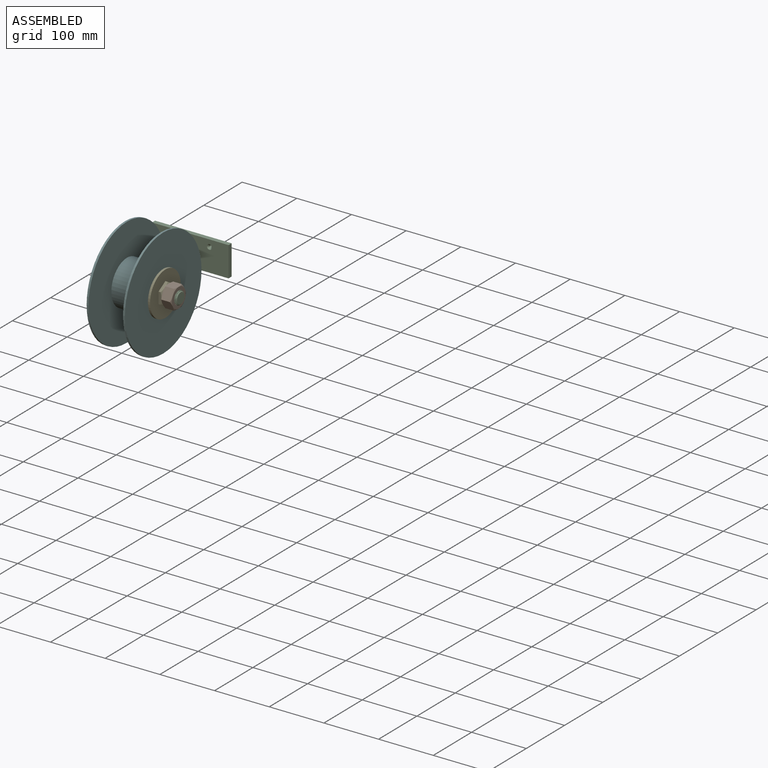
[diagram: assembled view]
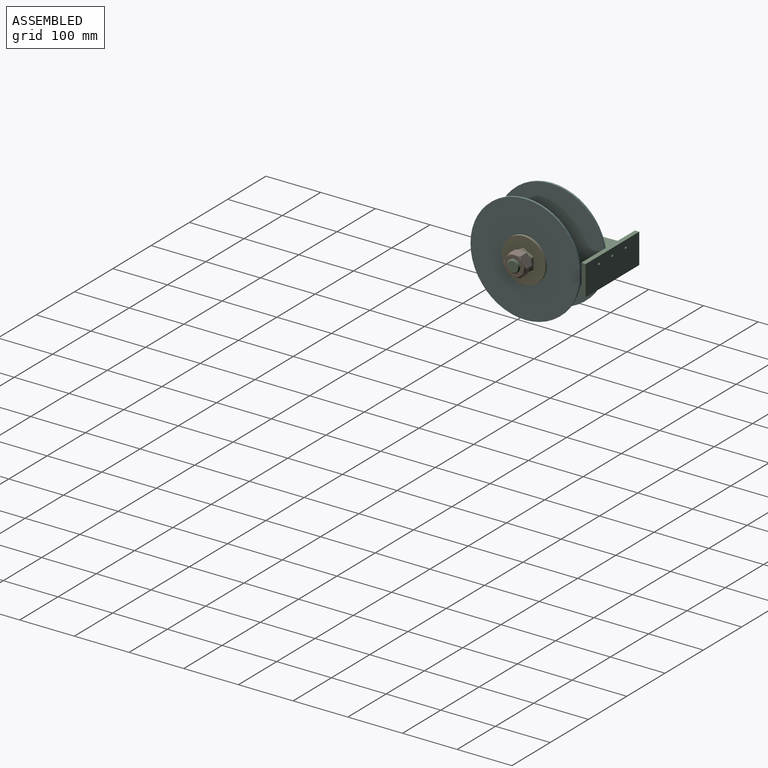
[diagram: assembled view, second angle]
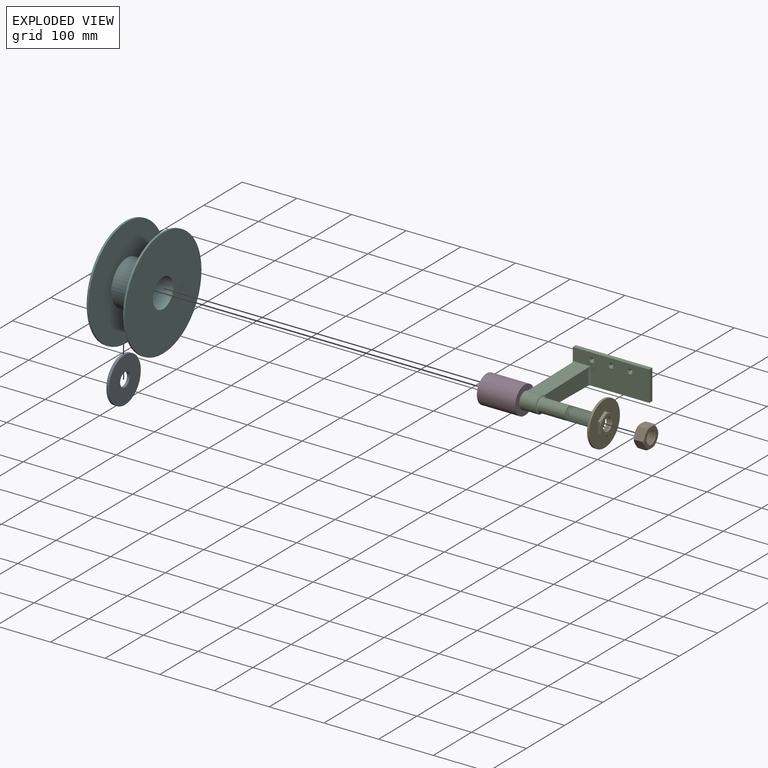
[diagram: exploded view]
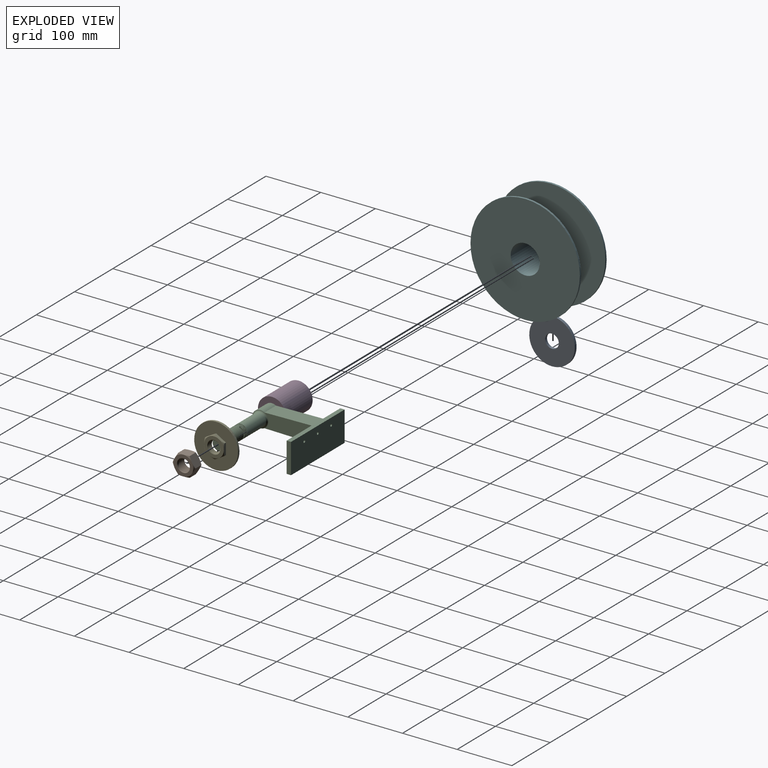
[diagram: exploded view, second angle]
ASSEMBLY  parts=6 mates=5
PART A: 4 faces, bbox 5x83x83 mm
  f0: cylinder r=12.5mm len=25mm, axis (-1,0,0), area 392.7mm2, adj f2,f3
  f1: cylinder r=41.5mm len=83mm, axis (-1,0,0), area 1303.8mm2, adj f2,f3
  f2: plane 83x83mm, normal (1,0,0), area 4919.7mm2, adj f0,f1
  f3: plane 83x83mm, normal (-1,0,0), area 4919.7mm2, adj f0,f1
PART B: 27 faces, bbox 43.3x22.6x43.3 mm
  f0: plane 20.72x19.71mm, normal (-0.5,0,0.87), area 372mm2, adj f1,f5,f18,f19,f22,f23
  f1: plane 22.51x20.72mm, normal (-1,0,0), area 372mm2, adj f0,f2,f17,f18,f23,f24
  f2: plane 20.72x19.71mm, normal (-0.5,0,-0.87), area 372mm2, adj f1,f3,f16,f17,f24,f25
  f3: plane 20.72x19.71mm, normal (0.5,0,-0.87), area 372mm2, adj f2,f4,f15,f16,f25,f26
  f4: plane 22.51x20.72mm, normal (1,0,0), area 372mm2, adj f3,f5,f15,f20,f21,f26
  f5: plane 20.72x19.71mm, normal (0.5,0,0.87), area 372mm2, adj f0,f4,f19,f20,f21,f22
  f6: plane 36x36mm, normal (0,-1,0), area 565.5mm2, adj f7,f14,f15,f16,f17,f18,f19,f20
  f7: cone r=12mm half-angle=45deg, axis (0,-1,0), area 93.2mm2, adj f6,f10,f11,f12,f13
  f8: plane 36x36mm, normal (0,1,0), area 565.5mm2, adj f9,f14,f21,f22,f23,f24,f25,f26
  f9: cone r=12mm half-angle=45deg, axis (0,1,0), area 97.5mm2, adj f8,f11,f12,f13
  f10: plane 0.63x0.4mm, normal (-1,0,0), area 0.1mm2, adj f7,f11,f14
  f11: bspline ~25.24x24mm, area 885.8mm2, adj f7,f9,f10,f12,f14
  f12: cylinder r=10.05mm len=20.1mm, axis (0,-1,0), area 119.2mm2, adj f7,f9,f11,f13
  f13: bspline ~25.24x24mm, area 888.5mm2, adj f7,f9,f12,f14
  f14: cylinder r=12mm len=24mm, axis (0,1,0), area 163.6mm2, adj f6,f8,f10,f11,f13
  f15: cone r=18mm half-angle=60deg, axis (0,1,0), area 31.9mm2, adj f3,f4,f6
  f16: cone r=18mm half-angle=60deg, axis (0,1,0), area 31.9mm2, adj f2,f3,f6
  f17: cone r=18mm half-angle=60deg, axis (0,1,0), area 31.9mm2, adj f1,f2,f6
  f18: cone r=18mm half-angle=60deg, axis (0,1,0), area 31.9mm2, adj f0,f1,f6
  f19: cone r=18mm half-angle=60deg, axis (0,1,0), area 31.9mm2, adj f0,f5,f6
  f20: cone r=18mm half-angle=60deg, axis (0,1,0), area 31.9mm2, adj f4,f5,f6
  f21: cone r=18mm half-angle=60deg, axis (0,-1,0), area 31.9mm2, adj f4,f5,f8
  f22: cone r=18mm half-angle=60deg, axis (0,-1,0), area 31.9mm2, adj f0,f5,f8
  f23: cone r=18mm half-angle=60deg, axis (0,-1,0), area 31.9mm2, adj f0,f1,f8
  f24: cone r=18mm half-angle=60deg, axis (0,-1,0), area 31.9mm2, adj f1,f2,f8
  f25: cone r=18mm half-angle=60deg, axis (0,-1,0), area 31.9mm2, adj f2,f3,f8
  f26: cone r=18mm half-angle=60deg, axis (0,-1,0), area 31.9mm2, adj f3,f4,f8
PART C: 45 faces, bbox 142.1x152.7x59.7 mm
  f0: cylinder r=12mm len=48.68mm, axis (1,0,0), area 3643.5mm2, adj f1,f24,f25,f44
  f1: cylinder r=12mm len=24mm, axis (1,0,0), area 28.3mm2, adj f0,f2,f22,f24
  f2: cylinder r=12mm len=24mm, axis (1,0,0), area 28.3mm2, adj f1,f3,f22,f24
  f3: cylinder r=12mm len=24mm, axis (1,0,0), area 28.3mm2, adj f2,f4,f22,f24
  f4: cylinder r=12mm len=24mm, axis (1,0,0), area 28.3mm2, adj f3,f5,f22,f24
  f5: cylinder r=12mm len=24mm, axis (1,0,0), area 28.3mm2, adj f4,f6,f22,f24
  f6: cylinder r=12mm len=24mm, axis (1,0,0), area 28.3mm2, adj f5,f7,f22,f24
  f7: cylinder r=12mm len=24mm, axis (1,0,0), area 28.3mm2, adj f6,f8,f22,f24
  f8: cylinder r=12mm len=24mm, axis (1,0,0), area 28.3mm2, adj f7,f9,f22,f24
  f9: cylinder r=12mm len=24mm, axis (1,0,0), area 28.3mm2, adj f8,f10,f22,f24
  f10: cylinder r=12mm len=24mm, axis (1,0,0), area 28.3mm2, adj f9,f11,f22,f24
  f11: cylinder r=12mm len=24mm, axis (1,0,0), area 28.3mm2, adj f10,f12,f22,f24
  f12: cylinder r=12mm len=24mm, axis (1,0,0), area 28.3mm2, adj f11,f13,f22,f24
  f13: cylinder r=12mm len=24mm, axis (1,0,0), area 28.3mm2, adj f12,f14,f22,f24
  f14: cylinder r=12mm len=24mm, axis (1,0,0), area 28.3mm2, adj f13,f15,f22,f24
  f15: cylinder r=12mm len=24mm, axis (1,0,0), area 28.3mm2, adj f14,f16,f22,f24
  f16: cylinder r=12mm len=24mm, axis (1,0,0), area 28.3mm2, adj f15,f17,f22,f24
  f17: cylinder r=12mm len=24mm, axis (1,0,0), area 28.3mm2, adj f16,f18,f22,f24
  f18: cylinder r=12mm len=24mm, axis (1,0,0), area 28.3mm2, adj f17,f19,f22,f24
  f19: cylinder r=12mm len=24mm, axis (1,0,0), area 21.3mm2, adj f18,f20,f22,f24
  f20: cone r=9.75mm half-angle=45deg, axis (-1,0,0), area 119.8mm2, adj f19,f21,f22,f23,f24
  f21: plane 19.5x19.5mm, normal (1,0,0), area 298.6mm2, adj f20
  f22: bspline ~60.92x25.58mm, area 2054.5mm2, adj f1,f2,f3,f4,f5,f6,f7,f8
  f23: cylinder r=10.05mm len=58.4mm, axis (1,0,0), area 216.9mm2, adj f20,f22,f24,f25
  f24: bspline ~60.02x25.58mm, area 2052.4mm2, adj f0,f1,f2,f3,f4,f5,f6,f7
  f25: plane 25.18x24.39mm, normal (1,0,0), area 69mm2, adj f0,f22,f23,f24
  f26: cylinder r=15mm len=30mm, axis (1,0,0), area 1885mm2, adj f27,f29,f30,f44
  f27: plane 148x55mm, normal (-1,0,0), area 4299.4mm2, adj f26,f29,f30,f32,f33,f34,f35,f42
  f28: plane 114.5x29.9mm, normal (1,0,0), area 3060.8mm2, adj f29,f30,f43,f44
  f29: plane 117.52x33.02mm, normal (0,-0.02,-1), area 3527.4mm2, adj f26,f27,f28,f35,f43
  f30: plane 114.55x30mm, normal (0,-0.02,1), area 3437mm2, adj f26,f27,f28,f42,f43
  f31: plane 55x8mm, normal (1,0,0), area 440mm2, adj f32,f33,f34,f35
  f32: plane 140x55mm, normal (0,-1,0), area 6416.8mm2, adj f27,f31,f33,f35,f37,f39,f41,f42
  f33: plane 140x8mm, normal (0,0,1), area 1120mm2, adj f27,f31,f32,f34
  f34: plane 140x55mm, normal (0,1,0), area 7652.4mm2, adj f27,f31,f33,f35,f36,f38,f40
  f35: plane 140x8mm, normal (0,0,-1), area 1120mm2, adj f27,f29,f31,f32,f34
  f36: cylinder r=2.25mm len=5.34mm, axis (0,-1,0), area 75.4mm2, adj f34,f37
  f37: cone r=2.25mm half-angle=41deg, axis (0,-1,0), area 75.3mm2, adj f32,f36
  f38: cylinder r=2.25mm len=5.34mm, axis (0,-1,0), area 75.4mm2, adj f34,f39
  f39: cone r=2.25mm half-angle=41deg, axis (0,-1,0), area 75.3mm2, adj f32,f38
  f40: cylinder r=2.25mm len=5.34mm, axis (0,-1,0), area 75.4mm2, adj f34,f41
  f41: cone r=2.25mm half-angle=41deg, axis (0,-1,0), area 75.3mm2, adj f32,f40
  f42: cylinder r=3mm len=33mm, axis (-1,0,0), area 146.8mm2, adj f27,f30,f32,f43
  f43: cylinder r=3mm len=32.95mm, axis (0,0,-1), area 146.1mm2, adj f28,f29,f30,f32,f42
  f44: torus R=15mm, axis (-1,0,0), area 387.6mm2, adj f0,f26,f28
PART D: 12 faces, bbox 52.2x72.4x52.2 mm
  f0: cone r=12.25mm half-angle=45deg, axis (0,-1,0), area 23.7mm2, adj f1,f3,f5,f6
  f1: cone r=12.25mm half-angle=45deg, axis (0,-1,0), area 100.7mm2, adj f0,f4,f5,f10
  f2: plane 25.73x25.73mm, normal (0,1,0), area 88mm2, adj f3,f4,f5,f6,f9
  f3: cylinder r=10.05mm len=25.8mm, axis (0,-1,0), area 217.7mm2, adj f0,f2,f5,f6
  f4: cylinder r=12mm len=27.75mm, axis (0,1,0), area 258.6mm2, adj f1,f2,f5,f6
  f5: bspline ~30.63x27.71mm, area 1396.4mm2, adj f0,f1,f2,f3,f4
  f6: bspline ~29.63x27.71mm, area 1399.6mm2, adj f0,f2,f3,f4
  f7: plane 51x51mm, normal (0,1,0), area 1571.4mm2, adj f8,f9
  f8: cylinder r=25.5mm len=70mm, axis (0,-1,0), area 11215.5mm2, adj f7,f11
  f9: cylinder r=12.25mm len=42mm, axis (0,-1,0), area 3232.7mm2, adj f2,f7
  f10: cylinder r=12.25mm len=24.5mm, axis (0,-1,0), area 0.3mm2, adj f1,f11
  f11: plane 51x51mm, normal (0,-1,0), area 1571.4mm2, adj f8,f10
PART E: 21 faces, bbox 81.7x13.9x81.7 mm
  f0: plane 19.71x12.1mm, normal (-0.5,0,0.87), area 102.9mm2, adj f1,f5,f13,f14,f20
  f1: plane 22.51x7.22mm, normal (-1,0,0), area 102.9mm2, adj f0,f2,f14,f15,f20
  f2: plane 19.71x12.1mm, normal (-0.5,0,-0.87), area 102.9mm2, adj f1,f3,f15,f16,f20
  f3: plane 19.71x12.1mm, normal (0.5,0,-0.87), area 102.9mm2, adj f2,f4,f16,f17,f20
  f4: plane 22.51x7.22mm, normal (1,0,0), area 102.9mm2, adj f3,f5,f12,f17,f20
  f5: plane 19.71x12.1mm, normal (0.5,0,0.87), area 102.9mm2, adj f0,f4,f12,f13,f20
  f6: bspline ~25.24x24mm, area 444.7mm2, adj f7,f9,f11,f18
  f7: cylinder r=10.05mm len=20.1mm, axis (0,-1,0), area 60mm2, adj f6,f8,f11,f18
  f8: bspline ~25.24x24mm, area 444.7mm2, adj f7,f9,f11,f18
  f9: cylinder r=12mm len=24mm, axis (0,1,0), area 87mm2, adj f6,f8,f10,f18
  f10: plane 36x36mm, normal (0,1,0), area 565.5mm2, adj f9,f11,f12,f13,f14,f15,f16,f17
  f11: cone r=12mm half-angle=45deg, axis (0,1,0), area 97.5mm2, adj f6,f7,f8,f10
  f12: cone r=18mm half-angle=60deg, axis (0,-1,0), area 31.9mm2, adj f4,f5,f10
  f13: cone r=18mm half-angle=60deg, axis (0,-1,0), area 31.9mm2, adj f0,f5,f10
  f14: cone r=18mm half-angle=60deg, axis (0,-1,0), area 31.9mm2, adj f0,f1,f10
  f15: cone r=18mm half-angle=60deg, axis (0,-1,0), area 31.9mm2, adj f1,f2,f10
  f16: cone r=18mm half-angle=60deg, axis (0,-1,0), area 31.9mm2, adj f2,f3,f10
  f17: cone r=18mm half-angle=60deg, axis (0,-1,0), area 31.9mm2, adj f3,f4,f10
  f18: plane 81.18x81.18mm, normal (0,-1,0), area 4643.1mm2, adj f6,f7,f8,f9,f19
  f19: cylinder r=40mm len=80mm, axis (0,-1,0), area 1005.3mm2, adj f18,f20
  f20: plane 80x80mm, normal (0,1,0), area 3904.2mm2, adj f0,f1,f2,f3,f4,f5,f19
PART F: 8 faces, bbox 70x200x200 mm
  f0: cylinder r=100mm len=200mm, axis (-1,0,0), area 2199.1mm2, adj f1,f7
  f1: plane 200x200mm, normal (-1,0,0), area 29209.7mm2, adj f0,f2
  f2: cylinder r=26.5mm len=70mm, axis (-1,0,0), area 11655.3mm2, adj f1,f3
  f3: plane 200x200mm, normal (1,0,0), area 29209.7mm2, adj f2,f4
  f4: cylinder r=100mm len=200mm, axis (-1,0,0), area 2199.1mm2, adj f3,f5
  f5: plane 200x200mm, normal (-1,0,0), area 26262.9mm2, adj f4,f6
  f6: cylinder r=40.5mm len=81mm, axis (-1,0,0), area 16031.5mm2, adj f5,f7
  f7: plane 200x200mm, normal (1,0,0), area 26262.9mm2, adj f0,f6
PLACE A t=(10.27,-56.18,18.58)mm
PLACE B rot(axis=(0.58,0.58,-0.58),120deg) t=(104.27,-56.18,18.58)mm
PLACE C t=(79.77,-56.18,18.58)mm fixed
PLACE D rot(axis=(0.58,-0.58,0.58),120deg) t=(85.27,-56.18,18.58)mm
PLACE E rot(axis=(0.71,0.71,0),180deg) t=(85.27,-56.18,18.58)mm
PLACE F t=(50.27,-56.18,18.58)mm
MATE fastened D.f0 <-> E.f19  axis (1,0,0) through (85.27,-56.18,18.58)mm
MATE fastened A.f0 <-> C.f0  axis (-1,0,0) through (10.27,-56.18,18.58)mm
MATE fastened E.f7 <-> B.f7  axis (1,0,0) through (94.77,-56.18,18.58)mm
MATE fastened A.f1 <-> F.f0  axis (1,0,0) through (15.27,-56.18,18.58)mm
MATE fastened A.f1 <-> D.f8  axis (1,0,0) through (15.27,-56.18,18.58)mm
